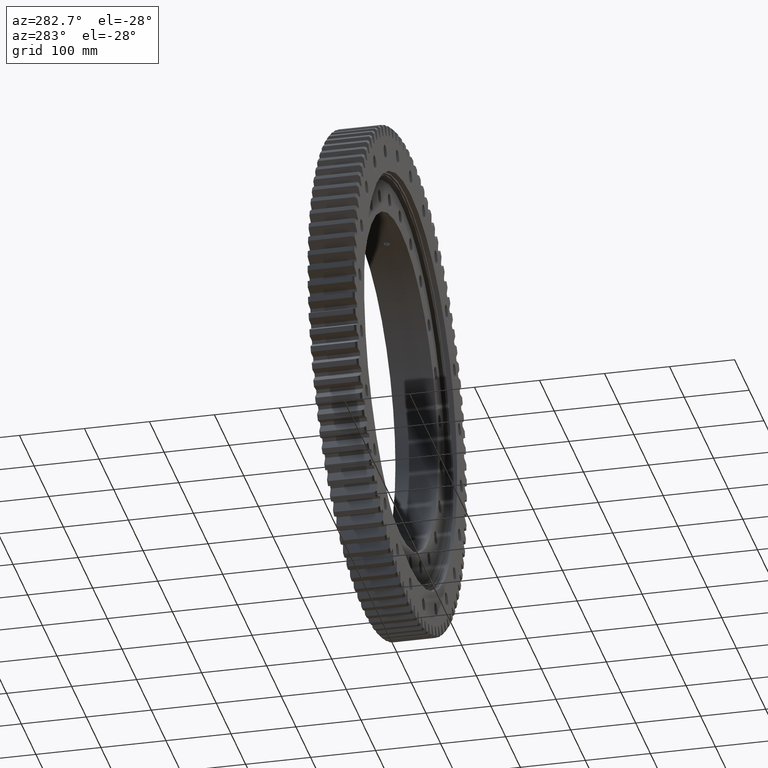
[diagram: clean part render]
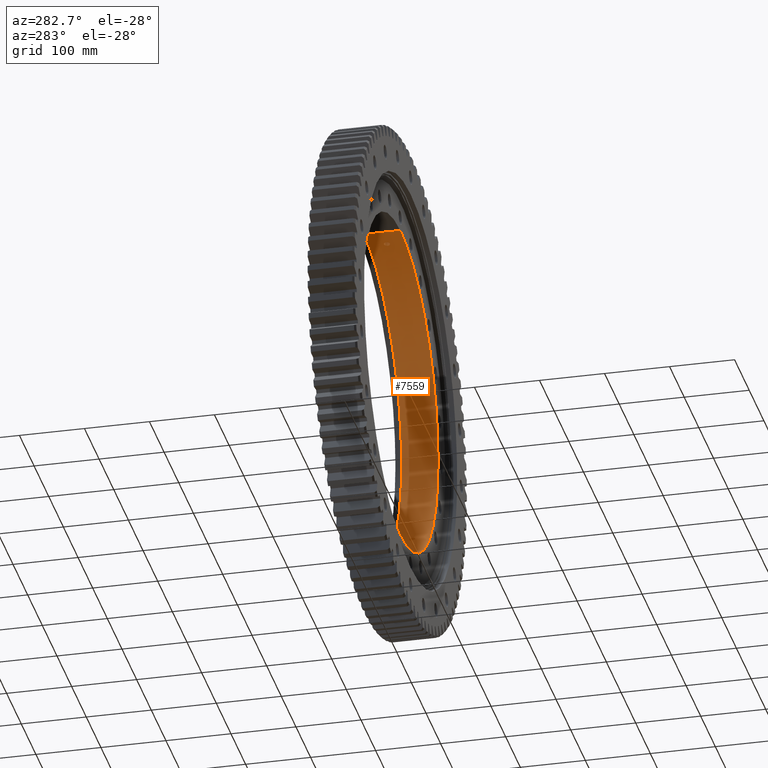
[diagram: same view with one face highlighted and labeled with its STEP entity id]
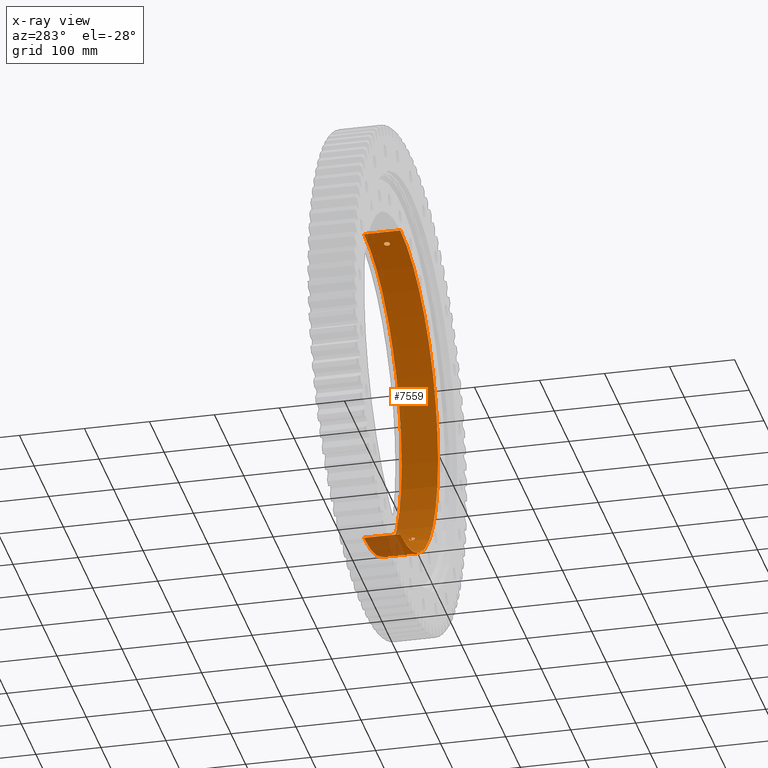
[diagram: x-ray of the same camera — body ghosted, the highlighted face saturated]
A machine part, auxiliary view. The second image highlights one B-rep face of the part: STEP entity #7559.
The next image is the same camera in x-ray: the body ghosted, the highlighted face saturated — about 5% of this face is hidden behind the body in this view.
In plain terms, the highlighted cylindrical surface (partial cylindrical patch) has radius 258 mm, axis along (-0, 1, -0).
Its self-contained STEP definition (entity closure, byte-faithful):
#295 = CARTESIAN_POINT ( 'NONE',  ( 37.22106169071195600, 2.743378559981476200, 255.3010365107919900 ) ) ;
#313 = VERTEX_POINT ( 'NONE', #8878 ) ;
#380 = CARTESIAN_POINT ( 'NONE',  ( 32.23989153153486600, 4.270943923837400300, 255.9778576580306700 ) ) ;
#470 = CARTESIAN_POINT ( 'NONE',  ( 29.20913293277876500, 3.941129445128748500E-009, 256.3412306932212300 ) ) ;
#652 = EDGE_CURVE ( 'NONE', #313, #21567, #25366, .T. ) ;
#930 = CARTESIAN_POINT ( 'NONE',  ( 30.95165117394050800, -3.577392402987925400, 256.1367899482385200 ) ) ;
#1017 = CARTESIAN_POINT ( 'NONE',  ( 36.39047895867570000, -3.581682752238470900, 255.4208151483671800 ) ) ;
#1083 = CARTESIAN_POINT ( 'NONE',  ( 207.3934513513067400, 3.941129445128747700E-009, -153.4664664889146800 ) ) ;
#1162 = CARTESIAN_POINT ( 'NONE',  ( 206.3451413520021700, -3.577392402987939100, -154.8733111798271700 ) ) ;
#1245 = CARTESIAN_POINT ( 'NONE',  ( 203.0056750944764300, -3.581682752238457100, -159.2254868082807200 ) ) ;
#1556 = CARTESIAN_POINT ( 'NONE',  ( 203.7983205856400800, 4.269496164772700600, -158.2097274313605300 ) ) ;
#1650 = CARTESIAN_POINT ( 'NONE',  ( 206.8435875374467800, 2.744961793019736100, -154.2068638376381400 ) ) ;
#2302 = CARTESIAN_POINT ( 'NONE',  ( 36.62186624016094100, 3.390110930839185700, 255.3877092433112900 ) ) ;
#2376 = CARTESIAN_POINT ( 'NONE',  ( 31.43764918873259600, 3.904592980393798200, 256.0775930804283600 ) ) ;
#2719 = EDGE_LOOP ( 'NONE', ( #8014, #19996 ) ) ;
#2918 = CARTESIAN_POINT ( 'NONE',  ( 31.69386493290762300, -4.042868610039436200, 256.0460367471031900 ) ) ;
#3003 = CARTESIAN_POINT ( 'NONE',  ( 37.03145521568585300, -2.976683561135775100, 255.3286402520064700 ) ) ;
#3067 = CARTESIAN_POINT ( 'NONE',  ( 207.3934513513067700, -0.2936318898154358100, -153.4664664889146500 ) ) ;
#3148 = CARTESIAN_POINT ( 'NONE',  ( 205.8954398948607400, -4.042868610039428200, -155.4707105495633600 ) ) ;
#3249 = CARTESIAN_POINT ( 'NONE',  ( 202.6053611641318900, -2.976683561135768000, -159.7345010818938800 ) ) ;
#3466 = CARTESIAN_POINT ( 'NONE',  ( 201.9327690644979900, 0.5896927788327391800, -160.5838100389903800 ) ) ;
#3548 = CARTESIAN_POINT ( 'NONE',  ( 204.3273453994179600, 4.471353123575433100, -157.5259353123356300 ) ) ;
#3635 = CARTESIAN_POINT ( 'NONE',  ( 207.1222297060620000, 1.994560221496196200, -153.8323591486642700 ) ) ;
#3962 = VERTEX_POINT ( 'NONE', #22506 ) ;
#4001 = VERTEX_POINT ( 'NONE', #16773 ) ;
#4251 = CARTESIAN_POINT ( 'NONE',  ( 35.91038268200137700, 3.905340843044389700, 255.4887569668561900 ) ) ;
#4327 = CARTESIAN_POINT ( 'NONE',  ( 30.72784038099084800, 3.392745382766242400, 256.1637054156184900 ) ) ;
#4346 = DIRECTION ( 'NONE',  ( -0.0000000000000000000, 1.000000000000000000, -2.727064569436389700E-017 ) ) ;
#4870 = CARTESIAN_POINT ( 'NONE',  ( 32.51766573033133100, -4.355725362398357200, 255.9427360346694800 ) ) ;
#4951 = CARTESIAN_POINT ( 'NONE',  ( 37.54129271799788400, -2.259567446621680600, 255.2541446990678100 ) ) ;
#5002 = AXIS2_PLACEMENT_3D ( 'NONE', #21004, #9302, #22957 ) ;
#5110 = CARTESIAN_POINT ( 'NONE',  ( 205.3940784549521400, -4.355725362398360700, -156.1324926115732400 ) ) ;
#5199 = CARTESIAN_POINT ( 'NONE',  ( 202.2859273716620400, -2.259567446621662000, -160.1387855342287900 ) ) ;
#5396 = ORIENTED_EDGE ( 'NONE', *, *, #14017, .F. ) ;
#5431 = CARTESIAN_POINT ( 'NONE',  ( 202.0577625404801800, 1.450688328466907700, -160.4265357119262200 ) ) ;
#5513 = CARTESIAN_POINT ( 'NONE',  ( 204.8628709110341800, 4.500103804194300700, -156.8288566294509700 ) ) ;
#5595 = CARTESIAN_POINT ( 'NONE',  ( 207.3074904948807700, 1.168577407898517600, -153.5825761369702600 ) ) ;
#5806 = FACE_OUTER_BOUND ( 'NONE', #20076, .T. ) ;
#6140 = CARTESIAN_POINT ( 'NONE',  ( 38.13213668514306700, 3.941127865337490000E-009, 255.1664949632407200 ) ) ;
#6223 = CARTESIAN_POINT ( 'NONE',  ( 35.11448278854869200, 4.269496164772697000, 255.5993865914499800 ) ) ;
#6310 = CARTESIAN_POINT ( 'NONE',  ( 30.12526775259791000, 2.744961793019727200, 256.2352333361584400 ) ) ;
#6402 = FACE_BOUND ( 'NONE', #2719, .T. ) ;
#6761 = CARTESIAN_POINT ( 'NONE',  ( 29.35172012691902300, -1.165436776986622700, 256.3249496917207500 ) ) ;
#6848 = CARTESIAN_POINT ( 'NONE',  ( 33.37783842752656900, -4.499749111501451200, 255.8319916229757200 ) ) ;
#6938 = CARTESIAN_POINT ( 'NONE',  ( 37.90273266060584900, -1.455767570901013800, 255.2006965148099800 ) ) ;
#6995 = CARTESIAN_POINT ( 'NONE',  ( 207.3080579933382200, -1.165436776986627600, -153.5818101205442800 ) ) ;
#7088 = CARTESIAN_POINT ( 'NONE',  ( 204.8680846325006300, -4.499749111501453000, -156.8220518131393000 ) ) ;
#7172 = CARTESIAN_POINT ( 'NONE',  ( 202.0589199150045700, -1.455767570901006900, -160.4250776143407200 ) ) ;
#7390 = CARTESIAN_POINT ( 'NONE',  ( 202.2840553657695500, 2.254183538948538100, -160.1411490580944400 ) ) ;
#7483 = CARTESIAN_POINT ( 'NONE',  ( 205.3937487814717400, 4.355938534187560900, -156.1329281282241100 ) ) ;
#7559 = ADVANCED_FACE ( 'NONE', ( #5806, #6402, #16154 ), #25337, .F. ) ;
#7564 = CARTESIAN_POINT ( 'NONE',  ( 207.3934513513068200, 0.2936982548164903700, -153.4664664889147300 ) ) ;
#7620 = CARTESIAN_POINT ( 'NONE',  ( 3.159588741800171200E-014, -28.00000000000003200, -258.0000000000000000 ) ) ;
#8014 = ORIENTED_EDGE ( 'NONE', *, *, #8830, .T. ) ;
#8109 = CARTESIAN_POINT ( 'NONE',  ( 38.10327439801008600, 0.5896927788327357400, 255.1708128858869900 ) ) ;
#8190 = CARTESIAN_POINT ( 'NONE',  ( 34.25778903567669400, 4.471353123575430500, 255.7156394599015000 ) ) ;
#8263 = CARTESIAN_POINT ( 'NONE',  ( 29.66161609380254300, 1.994560221496197000, 256.2892921882578300 ) ) ;
#8439 = VERTEX_POINT ( 'NONE', #17629 ) ;
#8712 = CARTESIAN_POINT ( 'NONE',  ( 29.66025251613040600, -1.991460744840521300, 256.2894496075865000 ) ) ;
#8789 = CARTESIAN_POINT ( 'NONE',  ( 34.25721075424269900, -4.471227045288252100, 255.7157135745926000 ) ) ;
#8830 = EDGE_CURVE ( 'NONE', #3962, #4001, #23323, .T. ) ;
#8859 = DIRECTION ( 'NONE',  ( 0.0000000000000000000, -1.000000000000000000, 0.0000000000000000000 ) ) ;
#8872 = CARTESIAN_POINT ( 'NONE',  ( 38.10328402336989500, -0.5914407524723969100, 255.1708116877279300 ) ) ;
#8878 = CARTESIAN_POINT ( 'NONE',  ( 38.13213668514306700, 3.941127865337490000E-009, 255.1664949632407200 ) ) ;
#8930 = CARTESIAN_POINT ( 'NONE',  ( 207.1230478240356400, -1.991460744840516600, -153.8312569654244200 ) ) ;
#9024 = CARTESIAN_POINT ( 'NONE',  ( 204.3276987253403000, -4.471227045288253900, -157.5254715632689200 ) ) ;
#9108 = CARTESIAN_POINT ( 'NONE',  ( 201.9327632141817900, -0.5914407524723821500, -160.5838177757169400 ) ) ;
#9238 = DIRECTION ( 'NONE',  ( 0.0000000000000000000, 2.689493761204351900E-017, 1.000000000000000000 ) ) ;
#9243 = CARTESIAN_POINT ( 'NONE',  ( 201.9145984902282000, 0.2973315372561316500, -160.6066465515357600 ) ) ;
#9302 = DIRECTION ( 'NONE',  ( -0.0000000000000000000, 1.000000000000000000, -2.727064569436389700E-017 ) ) ;
#9333 = CARTESIAN_POINT ( 'NONE',  ( 202.6044458803158100, 2.974986263970543100, -159.7356617320894300 ) ) ;
#9425 = CARTESIAN_POINT ( 'NONE',  ( 205.8921800106983300, 4.045555603624854300, -155.4750283087363700 ) ) ;
#10059 = CARTESIAN_POINT ( 'NONE',  ( 37.90457409741827600, 1.450688328466898300, 255.2004232478629100 ) ) ;
#10132 = CARTESIAN_POINT ( 'NONE',  ( 33.38633843205386100, 4.500103804194298900, 255.8308788158933900 ) ) ;
#10173 = AXIS2_PLACEMENT_3D ( 'NONE', #15047, #22902, #9238 ) ;
#10221 = CARTESIAN_POINT ( 'NONE',  ( 29.35266726583237300, 1.168577407898520300, 256.3248412318530400 ) ) ;
#10596 = CARTESIAN_POINT ( 'NONE',  ( 29.20913293277877900, -0.2936318898154363600, 256.3412306932213500 ) ) ;
#10678 = CARTESIAN_POINT ( 'NONE',  ( 30.12537790042942000, -2.745444580445555600, 256.2352214120368800 ) ) ;
#10755 = CARTESIAN_POINT ( 'NONE',  ( 35.10958702973534400, -4.271326005042587900, 255.6000613877934600 ) ) ;
#10845 = CARTESIAN_POINT ( 'NONE',  ( 38.13213668514306700, 3.941127865337490000E-009, 255.1664949632407200 ) ) ;
#10904 = CARTESIAN_POINT ( 'NONE',  ( 206.8435221369387900, -2.745444580445554700, -154.2069532663976200 ) ) ;
#10997 = CARTESIAN_POINT ( 'NONE',  ( 203.8013528558227600, -4.271326005042585200, -158.2058249780291400 ) ) ;
#11074 = CARTESIAN_POINT ( 'NONE',  ( 201.9145984902282300, 3.941136633896487600E-009, -160.6066465515357600 ) ) ;
#11221 = CARTESIAN_POINT ( 'NONE',  ( 201.9145984902282300, 3.941136633896487600E-009, -160.6066465515357600 ) ) ;
#11298 = CARTESIAN_POINT ( 'NONE',  ( 203.0012698415974600, 3.576385795801023400, -159.2311055150219400 ) ) ;
#11385 = CARTESIAN_POINT ( 'NONE',  ( 206.3440100226295000, 3.578749676847217600, -154.8748171658654400 ) ) ;
#11918 = EDGE_CURVE ( 'NONE', #4001, #3962, #14263, .T. ) ;
#12015 = CARTESIAN_POINT ( 'NONE',  ( 37.54427559265420200, 2.254183538948532700, 255.2537052563417300 ) ) ;
#12088 = AXIS2_PLACEMENT_3D ( 'NONE', #20552, #8859, #22531 ) ;
#12101 = CARTESIAN_POINT ( 'NONE',  ( 32.51820773555493800, 4.355938534187561800, 255.9426682873860000 ) ) ;
#12177 = CARTESIAN_POINT ( 'NONE',  ( 29.20913293277878300, 0.2936982548164890300, 256.3412306932214100 ) ) ;
#12198 = VERTEX_POINT ( 'NONE', #15818 ) ;
#12454 = VERTEX_POINT ( 'NONE', #14801 ) ;
#12605 = CARTESIAN_POINT ( 'NONE',  ( 29.20913293277876500, 3.941129445128748500E-009, 256.3412306932212300 ) ) ;
#12622 = CARTESIAN_POINT ( 'NONE',  ( 0.0000000000000000000, 31.02910628019325000, 258.0000000000000000 ) ) ;
#12632 = CARTESIAN_POINT ( 'NONE',  ( 30.72205849799697600, -3.387315734913552300, 256.1643966209391000 ) ) ;
#12700 = ORIENTED_EDGE ( 'NONE', *, *, #13518, .F. ) ;
#12724 = CARTESIAN_POINT ( 'NONE',  ( 35.90634441358348300, -3.907531528142443600, 255.4893230660554800 ) ) ;
#12865 = CARTESIAN_POINT ( 'NONE',  ( 206.4838457698466000, -3.387315734913559000, -154.6882814262874600 ) ) ;
#12952 = CARTESIAN_POINT ( 'NONE',  ( 203.3070719641011100, -3.907531528142433000, -158.8404679522254500 ) ) ;
#13136 = VERTEX_POINT ( 'NONE', #7620 ) ;
#13248 = CARTESIAN_POINT ( 'NONE',  ( 203.4657659477494500, 4.045114935423066900, -158.6371816905746100 ) ) ;
#13333 = CARTESIAN_POINT ( 'NONE',  ( 206.7320413101786000, 2.972758535892067400, -154.3564292229710300 ) ) ;
#13518 = EDGE_CURVE ( 'NONE', #12454, #12198, #22332, .T. ) ;
#13960 = CARTESIAN_POINT ( 'NONE',  ( 37.03291801014815800, 2.974986263970540900, 255.3284279180678000 ) ) ;
#14017 = EDGE_CURVE ( 'NONE', #13136, #12454, #18964, .T. ) ;
#14038 = CARTESIAN_POINT ( 'NONE',  ( 31.69923416412001100, 4.045555603624852600, 256.0453724841917200 ) ) ;
#14154 = EDGE_CURVE ( 'NONE', #21567, #313, #24437, .T. ) ;
#14263 = B_SPLINE_CURVE_WITH_KNOTS ( 'NONE', 3,
 ( #1083, #3067, #18690, #6995, #20638, #8930, #22601, #10904, #24565, #12865, #1162, #14836, #3148, #16795, #5110, #18772, #7088, #20721, #9024, #22678, #10997, #24647, #12952, #1245, #14924, #3249, #16879, #5199, #18859, #7172, #20806, #9108, #22771, #11074 ),
 .UNSPECIFIED., .F., .F.,
 ( 4, 2, 2, 2, 2, 2, 2, 2, 2, 2, 2, 2, 2, 2, 2, 2, 4 ),
 ( 0.01406932399743848200, 0.01494845807402253600, 0.01582759215060659100, 0.01670672622719064300, 0.01758586030377469800, 0.01846499438035875000, 0.01934412845694280500, 0.02022326253352686000, 0.02110239661011091600, 0.02198153068669497100, 0.02286066476327902300, 0.02373979883986307400, 0.02461893291644713000, 0.02549806699303118500, 0.02637720106961524000, 0.02725633514619929500, 0.02813546922278334700 ),
 .UNSPECIFIED. ) ;
#14592 = CARTESIAN_POINT ( 'NONE',  ( 31.43744974270393300, -3.904557050639505500, 256.0776183680571900 ) ) ;
#14671 = CARTESIAN_POINT ( 'NONE',  ( 36.61997967425391200, -3.391794366630837200, 255.3879799383424500 ) ) ;
#14801 = CARTESIAN_POINT ( 'NONE',  ( 3.159588741800171200E-014, 27.99999999999996100, -258.0000000000000000 ) ) ;
#14836 = CARTESIAN_POINT ( 'NONE',  ( 206.0509979760013600, -3.904557050639516200, -155.2644392914077700 ) ) ;
#14924 = CARTESIAN_POINT ( 'NONE',  ( 202.8624886106673300, -3.391794366630831400, -159.4078226531457300 ) ) ;
#15047 = CARTESIAN_POINT ( 'NONE',  ( 0.0000000000000000000, 31.02910628019324300, -1.692367527159823000E-015 ) ) ;
#15230 = CARTESIAN_POINT ( 'NONE',  ( 203.9721233743849500, 4.355840061079657500, -157.9856235869071400 ) ) ;
#15304 = CARTESIAN_POINT ( 'NONE',  ( 207.0382399259201000, 2.257535886901201200, -153.9454246425609100 ) ) ;
#15818 = CARTESIAN_POINT ( 'NONE',  ( 0.0000000000000000000, 27.99999999999996100, 258.0000000000000000 ) ) ;
#15839 = VECTOR ( 'NONE', #18448, 1000.000000000000000 ) ;
#15930 = CARTESIAN_POINT ( 'NONE',  ( 36.39754752788945100, 3.576385795801031400, 255.4198094408344300 ) ) ;
#15982 = ORIENTED_EDGE ( 'NONE', *, *, #24403, .T. ) ;
#16023 = CARTESIAN_POINT ( 'NONE',  ( 30.95352106079380100, 3.578749676847216700, 256.1365631812807900 ) ) ;
#16040 = CARTESIAN_POINT ( 'NONE',  ( 3.159588741800171200E-014, 31.02910628019323600, -258.0000000000000000 ) ) ;
#16154 = FACE_BOUND ( 'NONE', #18391, .T. ) ;
#16476 = CARTESIAN_POINT ( 'NONE',  ( 29.20913293277876500, 3.941129445128748500E-009, 256.3412306932212300 ) ) ;
#16563 = CARTESIAN_POINT ( 'NONE',  ( 32.23376246838418500, -4.268828060303900600, 255.9786291185576800 ) ) ;
#16652 = CARTESIAN_POINT ( 'NONE',  ( 37.21585562708283100, -2.750366688862602600, 255.3017961843104300 ) ) ;
#16773 = CARTESIAN_POINT ( 'NONE',  ( 207.3934513513067400, 3.941129445128747700E-009, -153.4664664889146800 ) ) ;
#16795 = CARTESIAN_POINT ( 'NONE',  ( 205.5671144083931100, -4.268828060303893500, -155.9045717164538900 ) ) ;
#16879 = CARTESIAN_POINT ( 'NONE',  ( 202.4899133138677900, -2.750366688862591500, -159.8807744887840300 ) ) ;
#17103 = CARTESIAN_POINT ( 'NONE',  ( 202.0039195959854200, 1.164881543523675000, -160.4942981434326200 ) ) ;
#17189 = CARTESIAN_POINT ( 'NONE',  ( 204.5055098023107100, 4.499895637814385700, -157.2945727293504800 ) ) ;
#17272 = CARTESIAN_POINT ( 'NONE',  ( 207.2568533285995900, 1.449133698411810800, -153.6509339639094900 ) ) ;
#17629 = CARTESIAN_POINT ( 'NONE',  ( 0.0000000000000000000, -28.00000000000001800, 258.0000000000000000 ) ) ;
#17823 = CARTESIAN_POINT ( 'NONE',  ( 38.13213668514305300, 0.2973315372561307100, 255.1664949632407200 ) ) ;
#17920 = CARTESIAN_POINT ( 'NONE',  ( 35.65094635492933200, 4.045114935423063300, 255.5251129564972200 ) ) ;
#17998 = CARTESIAN_POINT ( 'NONE',  ( 30.31056828945710500, 2.972758535892072700, 256.2134141623142800 ) ) ;
#18127 = CIRCLE ( 'NONE', #5002, 258.0000000000000000 ) ;
#18391 = EDGE_LOOP ( 'NONE', ( #18994, #20150 ) ) ;
#18448 = DIRECTION ( 'NONE',  ( -0.0000000000000000000, 1.000000000000000000, -2.727064569436389700E-017 ) ) ;
#18456 = CARTESIAN_POINT ( 'NONE',  ( 29.23741854733413700, -0.5854604880724756400, 256.3380125255717400 ) ) ;
#18543 = CARTESIAN_POINT ( 'NONE',  ( 33.08819659722885800, -4.470444294956887000, 255.8696034299602200 ) ) ;
#18632 = CARTESIAN_POINT ( 'NONE',  ( 37.68026037958425400, -1.997051955863709900, 255.2336392846996800 ) ) ;
#18690 = CARTESIAN_POINT ( 'NONE',  ( 207.3765215290910100, -0.5854604880724779700, -153.4893534658565700 ) ) ;
#18772 = CARTESIAN_POINT ( 'NONE',  ( 205.0454783279803300, -4.470444294956891400, -156.5900205335951200 ) ) ;
#18859 = CARTESIAN_POINT ( 'NONE',  ( 202.1986853311109700, -1.997051955863706500, -160.2488823522830600 ) ) ;
#18964 = LINE ( 'NONE', #16040, #23506 ) ;
#18994 = ORIENTED_EDGE ( 'NONE', *, *, #652, .T. ) ;
#19069 = CARTESIAN_POINT ( 'NONE',  ( 202.1981828505347200, 1.995695908250768800, -160.2495167397915700 ) ) ;
#19148 = CARTESIAN_POINT ( 'NONE',  ( 205.0439448655166600, 4.470843709252196000, -156.5920303156789800 ) ) ;
#19232 = CARTESIAN_POINT ( 'NONE',  ( 207.3759469375034700, 0.5919672256377428400, -153.4901297801494300 ) ) ;
#19870 = CARTESIAN_POINT ( 'NONE',  ( 34.83350177179387700, 4.355840061079653900, 255.6378522995248400 ) ) ;
#19961 = CARTESIAN_POINT ( 'NONE',  ( 29.80152857387943800, 2.257535886901191000, 256.2730876519451000 ) ) ;
#19996 = ORIENTED_EDGE ( 'NONE', *, *, #11918, .T. ) ;
#20076 = EDGE_LOOP ( 'NONE', ( #5396, #24376, #15982, #12700 ) ) ;
#20150 = ORIENTED_EDGE ( 'NONE', *, *, #14154, .T. ) ;
#20401 = CARTESIAN_POINT ( 'NONE',  ( 29.43758923699807500, -1.449899651982096400, 256.3151203097351600 ) ) ;
#20485 = CARTESIAN_POINT ( 'NONE',  ( 33.96617959201909500, -4.500247703859121100, 255.7545438106526500 ) ) ;
#20552 = CARTESIAN_POINT ( 'NONE',  ( 0.0000000000000000000, 27.99999999999996100, -1.609761843022099500E-015 ) ) ;
#20569 = CARTESIAN_POINT ( 'NONE',  ( 37.98809711819026100, -1.173642941458679300, 255.1879853521290600 ) ) ;
#20638 = CARTESIAN_POINT ( 'NONE',  ( 207.2566109437956400, -1.449899651982091300, -153.6512602602802500 ) ) ;
#20721 = CARTESIAN_POINT ( 'NONE',  ( 204.5068422773151700, -4.500247703859119300, -157.2928463015204300 ) ) ;
#20806 = CARTESIAN_POINT ( 'NONE',  ( 202.0052294964190500, -1.173642941458668000, -160.4926498218486600 ) ) ;
#21004 = CARTESIAN_POINT ( 'NONE',  ( 0.0000000000000000000, -28.00000000000002500, -8.260568413772157400E-017 ) ) ;
#21037 = CARTESIAN_POINT ( 'NONE',  ( 202.4866523854876200, 2.743378559981481100, -159.8849032353813300 ) ) ;
#21125 = CARTESIAN_POINT ( 'NONE',  ( 205.5633817724034600, 4.270943923837403000, -155.9094939105803500 ) ) ;
#21205 = CARTESIAN_POINT ( 'NONE',  ( 207.3934513513067400, 3.941129445128747700E-009, -153.4664664889146800 ) ) ;
#21567 = VERTEX_POINT ( 'NONE', #12605 ) ;
#21647 = LINE ( 'NONE', #12622, #15839 ) ;
#21676 = EDGE_CURVE ( 'NONE', #8439, #13136, #18127, .T. ) ;
#21742 = CARTESIAN_POINT ( 'NONE',  ( 37.99017955677234700, 1.164881543523671500, 255.1876751058689800 ) ) ;
#21834 = CARTESIAN_POINT ( 'NONE',  ( 33.96834095987994600, 4.499895637814388400, 255.7542530673640900 ) ) ;
#21918 = CARTESIAN_POINT ( 'NONE',  ( 29.43718546364982900, 1.449133698411810400, 256.3151670729475300 ) ) ;
#22332 = CIRCLE ( 'NONE', #12088, 258.0000000000000000 ) ;
#22369 = CARTESIAN_POINT ( 'NONE',  ( 29.79845021845748900, -2.252581222374554500, 256.2734466352246700 ) ) ;
#22464 = CARTESIAN_POINT ( 'NONE',  ( 34.82703875424468300, -4.357375941555831700, 255.6387295173289000 ) ) ;
#22506 = CARTESIAN_POINT ( 'NONE',  ( 201.9145984902282300, 3.941136633896487600E-009, -160.6066465515357600 ) ) ;
#22531 = DIRECTION ( 'NONE',  ( 0.0000000000000000000, 0.0000000000000000000, 1.000000000000000000 ) ) ;
#22543 = CARTESIAN_POINT ( 'NONE',  ( 38.13213668514307400, -0.2972643513644089900, 255.1664949632407800 ) ) ;
#22601 = CARTESIAN_POINT ( 'NONE',  ( 207.0400899922707400, -2.252581222374553600, -153.9429382002033400 ) ) ;
#22678 = CARTESIAN_POINT ( 'NONE',  ( 203.9761145760624900, -4.357375941555831700, -157.9804650584264600 ) ) ;
#22771 = CARTESIAN_POINT ( 'NONE',  ( 201.9145984902281400, -0.2972643513644092100, -160.6066465515357300 ) ) ;
#22902 = DIRECTION ( 'NONE',  ( -0.0000000000000000000, 1.000000000000000000, -2.727064569436389700E-017 ) ) ;
#22957 = DIRECTION ( 'NONE',  ( 0.0000000000000000000, 2.689493761204351900E-017, 1.000000000000000000 ) ) ;
#22983 = CARTESIAN_POINT ( 'NONE',  ( 202.8613108989401900, 3.390110930839188400, -159.4093211196316700 ) ) ;
#23076 = CARTESIAN_POINT ( 'NONE',  ( 206.0508763532581300, 3.904592980393798700, -155.2645993729208300 ) ) ;
#23323 = B_SPLINE_CURVE_WITH_KNOTS ( 'NONE', 3,
 ( #11221, #9243, #3466, #17103, #5431, #19069, #7390, #21037, #9333, #22983, #11298, #24958, #13248, #1556, #15230, #3548, #17189, #5513, #19148, #7483, #21125, #9425, #23076, #11385, #25045, #13333, #1650, #15304, #3635, #17272, #5595, #19232, #7564, #21205 ),
 .UNSPECIFIED., .F., .F.,
 ( 4, 2, 2, 2, 2, 2, 2, 2, 2, 2, 2, 2, 2, 2, 2, 2, 4 ),
 ( 1.037961867960703500E-017, 0.0008793327498399149100, 0.001758665499679819400, 0.002637998249519723800, 0.003517330999359628400, 0.004396663749199532600, 0.005275996499039437200, 0.006155329248879341800, 0.007034661998719246400, 0.007913994748559151000, 0.008793327498399054800, 0.009672660248238960200, 0.01055199299807886400, 0.01143132574791876900, 0.01231065849775867300, 0.01318999124759857900, 0.01406932399743848200 ),
 .UNSPECIFIED. ) ;
#23506 = VECTOR ( 'NONE', #4346, 1000.000000000000000 ) ;
#23700 = CARTESIAN_POINT ( 'NONE',  ( 37.68106101557059200, 1.995695908250761000, 255.2335213175099400 ) ) ;
#23780 = CARTESIAN_POINT ( 'NONE',  ( 33.09070385080141800, 4.470843709252196000, 255.8692803035528700 ) ) ;
#23864 = CARTESIAN_POINT ( 'NONE',  ( 29.23837815102692500, 0.5919672256377448400, 256.3379030718066900 ) ) ;
#24322 = CARTESIAN_POINT ( 'NONE',  ( 30.31036295580166900, -2.972156290274810900, 256.2134361660442900 ) ) ;
#24376 = ORIENTED_EDGE ( 'NONE', *, *, #21676, .F. ) ;
#24403 = EDGE_CURVE ( 'NONE', #8439, #12198, #21647, .T. ) ;
#24409 = CARTESIAN_POINT ( 'NONE',  ( 35.65026138327790100, -4.045617038093497300, 255.5252107838799700 ) ) ;
#24437 = B_SPLINE_CURVE_WITH_KNOTS ( 'NONE', 3,
 ( #16476, #10596, #18456, #6761, #20401, #8712, #22369, #10678, #24322, #12632, #930, #14592, #2918, #16563, #4870, #18543, #6848, #20485, #8789, #22464, #10755, #24409, #12724, #1017, #14671, #3003, #16652, #4951, #18632, #6938, #20569, #8872, #22543, #10845 ),
 .UNSPECIFIED., .F., .F.,
 ( 4, 2, 2, 2, 2, 2, 2, 2, 2, 2, 2, 2, 2, 2, 2, 2, 4 ),
 ( 0.01406932399743845600, 0.01494845807402251300, 0.01582759215060657000, 0.01670672622719062900, 0.01758586030377468400, 0.01846499438035874300, 0.01934412845694279100, 0.02022326253352684000, 0.02110239661011088800, 0.02198153068669493600, 0.02286066476327898400, 0.02373979883986303600, 0.02461893291644708500, 0.02549806699303113600, 0.02637720106961518500, 0.02725633514619923300, 0.02813546922278328100 ),
 .UNSPECIFIED. ) ;
#24565 = CARTESIAN_POINT ( 'NONE',  ( 206.7321630327955400, -2.972156290274820200, -154.3562624006742100 ) ) ;
#24647 = CARTESIAN_POINT ( 'NONE',  ( 203.4661931545738300, -4.045617038093497300, -158.6366374014150200 ) ) ;
#24958 = CARTESIAN_POINT ( 'NONE',  ( 203.3045625736045300, 3.905340843044382100, -158.8436821456630000 ) ) ;
#25045 = CARTESIAN_POINT ( 'NONE',  ( 206.4803562269829900, 3.392745382766237100, -154.6929430811816500 ) ) ;
#25337 = CYLINDRICAL_SURFACE ( 'NONE', #10173, 258.0000000000000000 ) ;
#25366 = B_SPLINE_CURVE_WITH_KNOTS ( 'NONE', 3,
 ( #6140, #17823, #8109, #21742, #10059, #23700, #12015, #295, #13960, #2302, #15930, #4251, #17920, #6223, #19870, #8190, #21834, #10132, #23780, #12101, #380, #14038, #2376, #16023, #4327, #17998, #6310, #19961, #8263, #21918, #10221, #23864, #12177, #470 ),
 .UNSPECIFIED., .F., .F.,
 ( 4, 2, 2, 2, 2, 2, 2, 2, 2, 2, 2, 2, 2, 2, 2, 2, 4 ),
 ( 2.135636037369118200E-018, 0.0008793327498399051500, 0.001758665499679808100, 0.002637998249519712100, 0.003517330999359615800, 0.004396663749199518700, 0.005275996499039423300, 0.006155329248879326200, 0.007034661998719230800, 0.007913994748559133700, 0.008793327498399035700, 0.009672660248238939400, 0.01055199299807884300, 0.01143132574791874700, 0.01231065849775864700, 0.01318999124759855100, 0.01406932399743845600 ),
 .UNSPECIFIED. ) ;